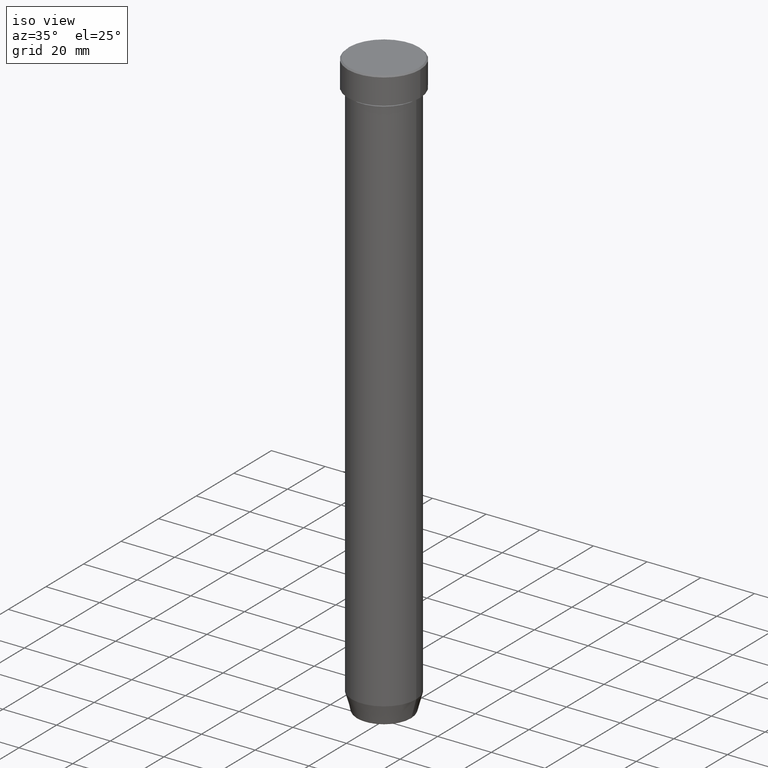
[diagram: clean part render]
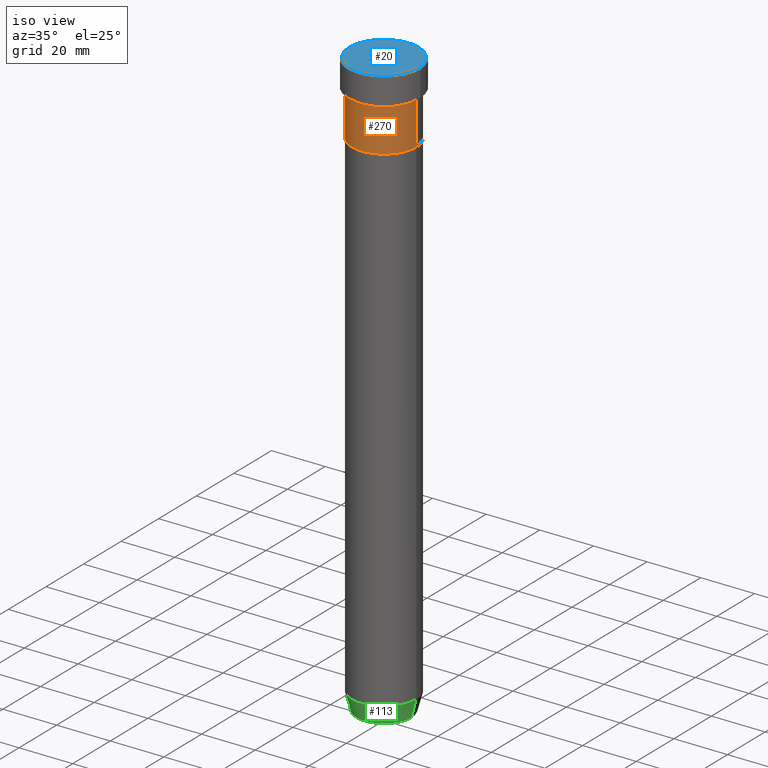
[diagram: same view with three faces highlighted in distinct colors, each labeled with its STEP entity id]
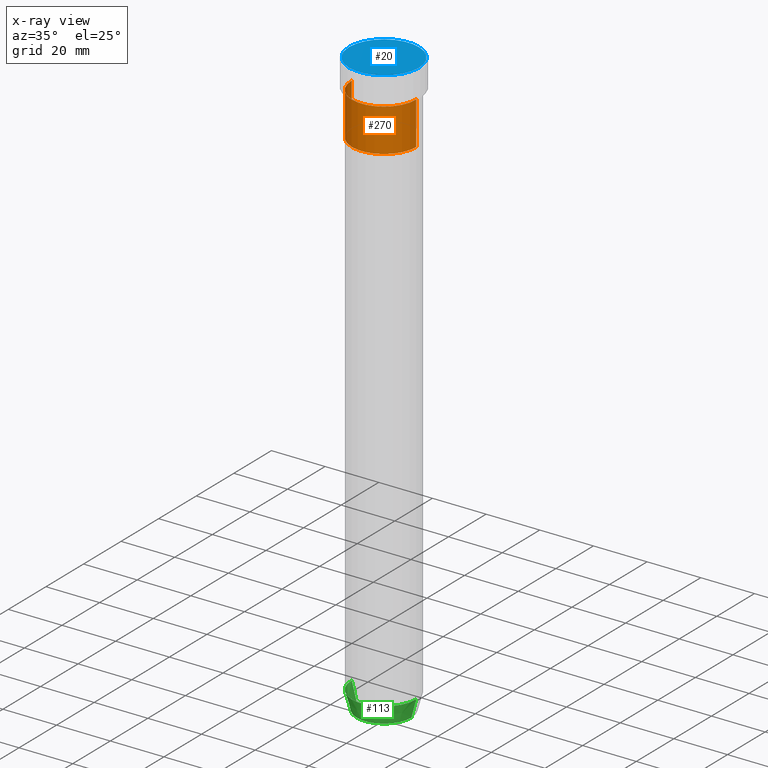
[diagram: x-ray of the same camera — body ghosted, the three highlighted faces saturated]
A machine part, iso view with three faces highlighted in distinct colors.
The next image is the same camera in x-ray (body ghosted, the three faces saturated) — at least one of them is partly hidden behind the body in this view.
Their STEP definitions:

[orange] entity #270 — the highlighted cylindrical surface (partial cylindrical patch) has radius 12 mm, axis along (-0, -0, 1).
#13 = CIRCLE ( 'NONE', #351, 12.00000000000000000 ) ;
#18 = CARTESIAN_POINT ( 'NONE',  ( 0.000000000000000000, 0.000000000000000000, -27.00000000000000000 ) ) ;
#29 = FACE_OUTER_BOUND ( 'NONE', #467, .T. ) ;
#42 = VECTOR ( 'NONE', #212, 1000.000000000000000 ) ;
#50 = DIRECTION ( 'NONE',  ( 1.000000000000000000, 0.000000000000000000, 0.000000000000000000 ) ) ;
#61 = ORIENTED_EDGE ( 'NONE', *, *, #317, .F. ) ;
#91 = EDGE_CURVE ( 'NONE', #272, #478, #13, .T. ) ;
#93 = DIRECTION ( 'NONE',  ( -0.000000000000000000, -0.000000000000000000, 1.000000000000000000 ) ) ;
#124 = VECTOR ( 'NONE', #179, 1000.000000000000000 ) ;
#139 = EDGE_CURVE ( 'NONE', #553, #478, #409, .T. ) ;
#142 = AXIS2_PLACEMENT_3D ( 'NONE', #461, #93, #366 ) ;
#143 = CARTESIAN_POINT ( 'NONE',  ( -12.00000000000000000, 1.469576158976823947E-15, 0.000000000000000000 ) ) ;
#146 = CARTESIAN_POINT ( 'NONE',  ( 12.00000000000000000, 0.000000000000000000, -11.00000000000000000 ) ) ;
#179 = DIRECTION ( 'NONE',  ( -0.000000000000000000, -0.000000000000000000, 1.000000000000000000 ) ) ;
#211 = DIRECTION ( 'NONE',  ( 1.000000000000000000, 0.000000000000000000, 0.000000000000000000 ) ) ;
#212 = DIRECTION ( 'NONE',  ( -0.000000000000000000, -0.000000000000000000, 1.000000000000000000 ) ) ;
#268 = CARTESIAN_POINT ( 'NONE',  ( -12.00000000000000000, 1.469576158976823947E-15, -11.00000000000000000 ) ) ;
#270 = ADVANCED_FACE ( 'NONE', ( #29 ), #508, .T. ) ;
#272 = VERTEX_POINT ( 'NONE', #268 ) ;
#317 = EDGE_CURVE ( 'NONE', #383, #272, #456, .T. ) ;
#318 = CARTESIAN_POINT ( 'NONE',  ( -12.00000000000000000, 1.469576158976823947E-15, -27.00000000000000000 ) ) ;
#321 = AXIS2_PLACEMENT_3D ( 'NONE', #18, #489, #211 ) ;
#322 = ORIENTED_EDGE ( 'NONE', *, *, #91, .F. ) ;
#345 = CARTESIAN_POINT ( 'NONE',  ( 12.00000000000000000, 0.000000000000000000, -27.00000000000000000 ) ) ;
#351 = AXIS2_PLACEMENT_3D ( 'NONE', #588, #470, #50 ) ;
#366 = DIRECTION ( 'NONE',  ( 1.000000000000000000, 0.000000000000000000, 0.000000000000000000 ) ) ;
#383 = VERTEX_POINT ( 'NONE', #318 ) ;
#406 = ORIENTED_EDGE ( 'NONE', *, *, #579, .T. ) ;
#409 = LINE ( 'NONE', #495, #42 ) ;
#456 = LINE ( 'NONE', #143, #124 ) ;
#461 = CARTESIAN_POINT ( 'NONE',  ( 0.000000000000000000, 0.000000000000000000, 0.000000000000000000 ) ) ;
#467 = EDGE_LOOP ( 'NONE', ( #61, #406, #572, #322 ) ) ;
#470 = DIRECTION ( 'NONE',  ( -0.000000000000000000, -0.000000000000000000, 1.000000000000000000 ) ) ;
#478 = VERTEX_POINT ( 'NONE', #146 ) ;
#489 = DIRECTION ( 'NONE',  ( -0.000000000000000000, -0.000000000000000000, 1.000000000000000000 ) ) ;
#495 = CARTESIAN_POINT ( 'NONE',  ( 12.00000000000000000, 0.000000000000000000, 0.000000000000000000 ) ) ;
#508 = CYLINDRICAL_SURFACE ( 'NONE', #142, 12.00000000000000000 ) ;
#551 = CIRCLE ( 'NONE', #321, 12.00000000000000000 ) ;
#553 = VERTEX_POINT ( 'NONE', #345 ) ;
#572 = ORIENTED_EDGE ( 'NONE', *, *, #139, .T. ) ;
#579 = EDGE_CURVE ( 'NONE', #383, #553, #551, .T. ) ;
#588 = CARTESIAN_POINT ( 'NONE',  ( 0.000000000000000000, 0.000000000000000000, -11.00000000000000000 ) ) ;

[blue] entity #20 — the highlighted planar face has unit normal (0, -0, 1).
#6 = CIRCLE ( 'NONE', #506, 12.99999999999999645 ) ;
#20 = ADVANCED_FACE ( 'NONE', ( #265 ), #444, .T. ) ;
#22 = CARTESIAN_POINT ( 'NONE',  ( 0.000000000000000000, 0.000000000000000000, 0.000000000000000000 ) ) ;
#30 = DIRECTION ( 'NONE',  ( 1.000000000000000000, 0.000000000000000000, 0.000000000000000000 ) ) ;
#38 = VERTEX_POINT ( 'NONE', #85 ) ;
#85 = CARTESIAN_POINT ( 'NONE',  ( -12.99999999999999645, 0.000000000000000000, 0.000000000000000000 ) ) ;
#107 = DIRECTION ( 'NONE',  ( 1.000000000000000000, 0.000000000000000000, 0.000000000000000000 ) ) ;
#114 = DIRECTION ( 'NONE',  ( -0.000000000000000000, -0.000000000000000000, 1.000000000000000000 ) ) ;
#133 = DIRECTION ( 'NONE',  ( 0.000000000000000000, -0.000000000000000000, 1.000000000000000000 ) ) ;
#153 = ORIENTED_EDGE ( 'NONE', *, *, #284, .T. ) ;
#154 = EDGE_LOOP ( 'NONE', ( #410, #153 ) ) ;
#210 = AXIS2_PLACEMENT_3D ( 'NONE', #523, #114, #107 ) ;
#265 = FACE_OUTER_BOUND ( 'NONE', #154, .T. ) ;
#284 = EDGE_CURVE ( 'NONE', #399, #38, #6, .T. ) ;
#332 = CARTESIAN_POINT ( 'NONE',  ( 12.99999999999999645, 1.622657008870242882E-15, 0.000000000000000000 ) ) ;
#363 = DIRECTION ( 'NONE',  ( 1.000000000000000000, 0.000000000000000000, 0.000000000000000000 ) ) ;
#367 = CIRCLE ( 'NONE', #210, 12.99999999999999645 ) ;
#399 = VERTEX_POINT ( 'NONE', #332 ) ;
#410 = ORIENTED_EDGE ( 'NONE', *, *, #493, .T. ) ;
#444 = PLANE ( 'NONE',  #539 ) ;
#462 = CARTESIAN_POINT ( 'NONE',  ( 0.000000000000000000, 0.000000000000000000, 0.000000000000000000 ) ) ;
#493 = EDGE_CURVE ( 'NONE', #38, #399, #367, .T. ) ;
#506 = AXIS2_PLACEMENT_3D ( 'NONE', #462, #543, #363 ) ;
#523 = CARTESIAN_POINT ( 'NONE',  ( 0.000000000000000000, 0.000000000000000000, 0.000000000000000000 ) ) ;
#539 = AXIS2_PLACEMENT_3D ( 'NONE', #22, #133, #30 ) ;
#543 = DIRECTION ( 'NONE',  ( -0.000000000000000000, -0.000000000000000000, 1.000000000000000000 ) ) ;

[green] entity #113 — the highlighted conical surface has half-angle 15 deg.
#8 = EDGE_LOOP ( 'NONE', ( #587, #66, #198, #221 ) ) ;
#24 = DIRECTION ( 'NONE',  ( -0.000000000000000000, -0.000000000000000000, 1.000000000000000000 ) ) ;
#25 = DIRECTION ( 'NONE',  ( 0.2588190451025214611, 0.000000000000000000, 0.9659258262890679791 ) ) ;
#34 = VERTEX_POINT ( 'NONE', #163 ) ;
#43 = EDGE_CURVE ( 'NONE', #499, #34, #130, .T. ) ;
#63 = CARTESIAN_POINT ( 'NONE',  ( -10.12435565298213369, 1.239875974385398152E-15, -220.0000000000000284 ) ) ;
#66 = ORIENTED_EDGE ( 'NONE', *, *, #75, .T. ) ;
#75 = EDGE_CURVE ( 'NONE', #103, #499, #569, .T. ) ;
#103 = VERTEX_POINT ( 'NONE', #230 ) ;
#104 = AXIS2_PLACEMENT_3D ( 'NONE', #443, #24, #582 ) ;
#113 = ADVANCED_FACE ( 'NONE', ( #417 ), #583, .T. ) ;
#130 = LINE ( 'NONE', #395, #504 ) ;
#145 = DIRECTION ( 'NONE',  ( -0.000000000000000000, -0.000000000000000000, 1.000000000000000000 ) ) ;
#163 = CARTESIAN_POINT ( 'NONE',  ( 12.00000000000000000, 0.000000000000000000, -213.0000000000000284 ) ) ;
#180 = CARTESIAN_POINT ( 'NONE',  ( 0.000000000000000000, 0.000000000000000000, -219.6294095225512706 ) ) ;
#187 = VERTEX_POINT ( 'NONE', #578 ) ;
#191 = DIRECTION ( 'NONE',  ( -0.000000000000000000, -0.000000000000000000, 1.000000000000000000 ) ) ;
#192 = VECTOR ( 'NONE', #574, 1000.000000000000114 ) ;
#198 = ORIENTED_EDGE ( 'NONE', *, *, #43, .T. ) ;
#221 = ORIENTED_EDGE ( 'NONE', *, *, #243, .F. ) ;
#230 = CARTESIAN_POINT ( 'NONE',  ( -10.22365507213718416, 1.360806402472382153E-15, -219.6294095225512706 ) ) ;
#243 = EDGE_CURVE ( 'NONE', #187, #34, #422, .T. ) ;
#271 = AXIS2_PLACEMENT_3D ( 'NONE', #180, #145, #562 ) ;
#324 = DIRECTION ( 'NONE',  ( 1.000000000000000000, 0.000000000000000000, 0.000000000000000000 ) ) ;
#370 = AXIS2_PLACEMENT_3D ( 'NONE', #599, #191, #324 ) ;
#395 = CARTESIAN_POINT ( 'NONE',  ( 10.12435565298213369, 0.000000000000000000, -220.0000000000000284 ) ) ;
#417 = FACE_OUTER_BOUND ( 'NONE', #8, .T. ) ;
#422 = CIRCLE ( 'NONE', #104, 12.00000000000000000 ) ;
#438 = LINE ( 'NONE', #63, #192 ) ;
#443 = CARTESIAN_POINT ( 'NONE',  ( 0.000000000000000000, 0.000000000000000000, -213.0000000000000284 ) ) ;
#499 = VERTEX_POINT ( 'NONE', #563 ) ;
#504 = VECTOR ( 'NONE', #25, 1000.000000000000114 ) ;
#562 = DIRECTION ( 'NONE',  ( -1.000000000000000000, 0.000000000000000000, 0.000000000000000000 ) ) ;
#563 = CARTESIAN_POINT ( 'NONE',  ( 10.22365507213718416, 0.000000000000000000, -219.6294095225512706 ) ) ;
#569 = CIRCLE ( 'NONE', #271, 10.22365507213718416 ) ;
#570 = EDGE_CURVE ( 'NONE', #103, #187, #438, .T. ) ;
#574 = DIRECTION ( 'NONE',  ( -0.2588190451025214611, 3.169619151431774186E-17, 0.9659258262890679791 ) ) ;
#578 = CARTESIAN_POINT ( 'NONE',  ( -12.00000000000000000, 1.469576158976823947E-15, -213.0000000000000284 ) ) ;
#582 = DIRECTION ( 'NONE',  ( 1.000000000000000000, 0.000000000000000000, 0.000000000000000000 ) ) ;
#583 = CONICAL_SURFACE ( 'NONE', #370, 10.12435565298213369, 0.2617993877991502405 ) ;
#587 = ORIENTED_EDGE ( 'NONE', *, *, #570, .F. ) ;
#599 = CARTESIAN_POINT ( 'NONE',  ( 0.000000000000000000, 0.000000000000000000, -220.0000000000000284 ) ) ;